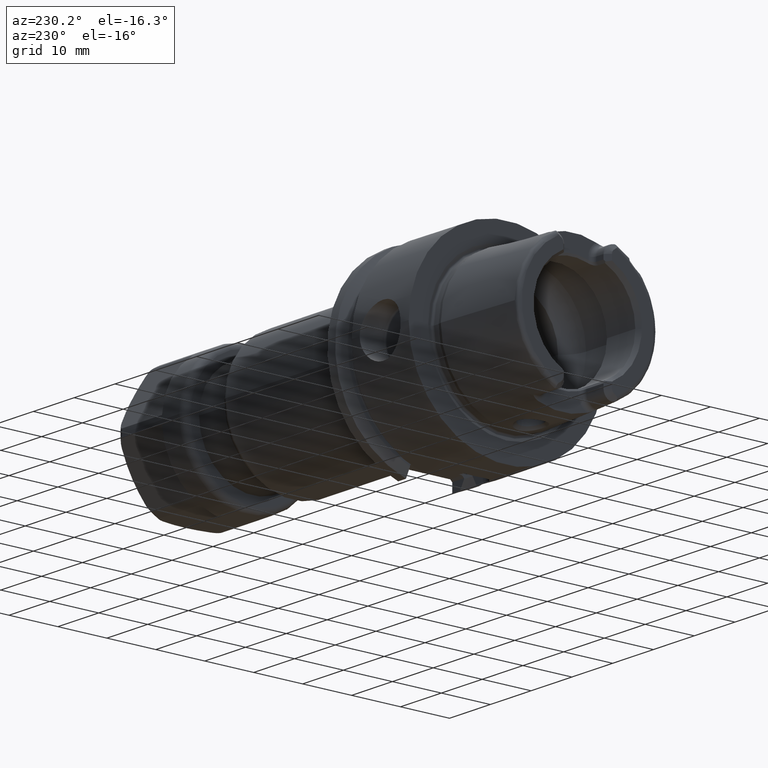
[diagram: clean part render]
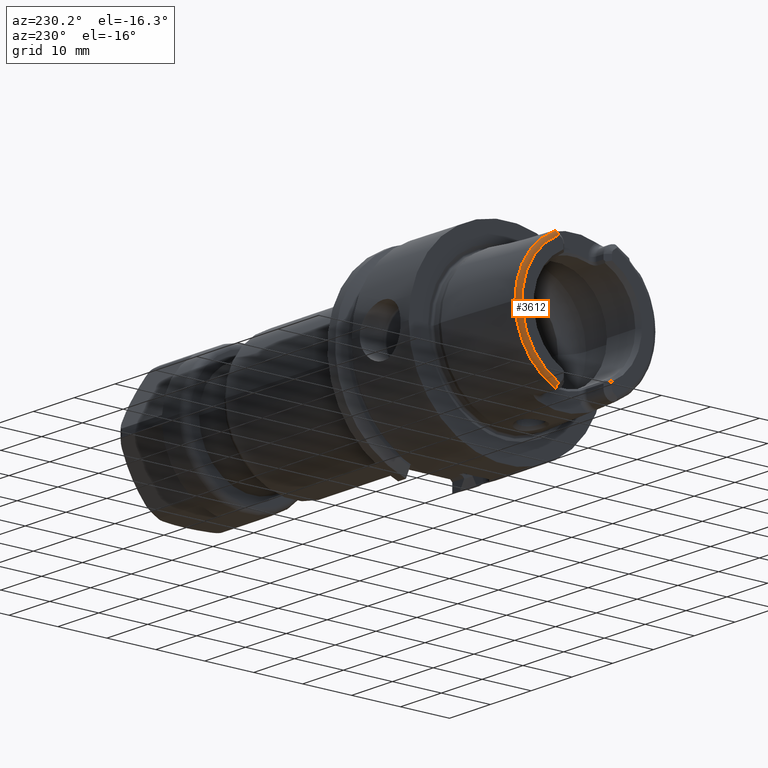
[diagram: same view with one face highlighted and labeled with its STEP entity id]
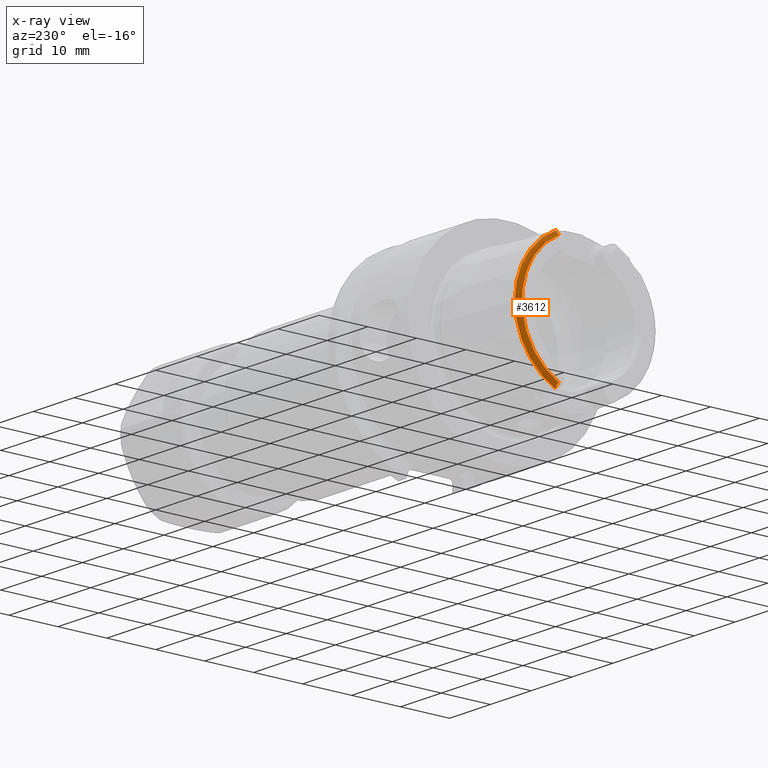
[diagram: x-ray of the same camera — body ghosted, the highlighted face saturated]
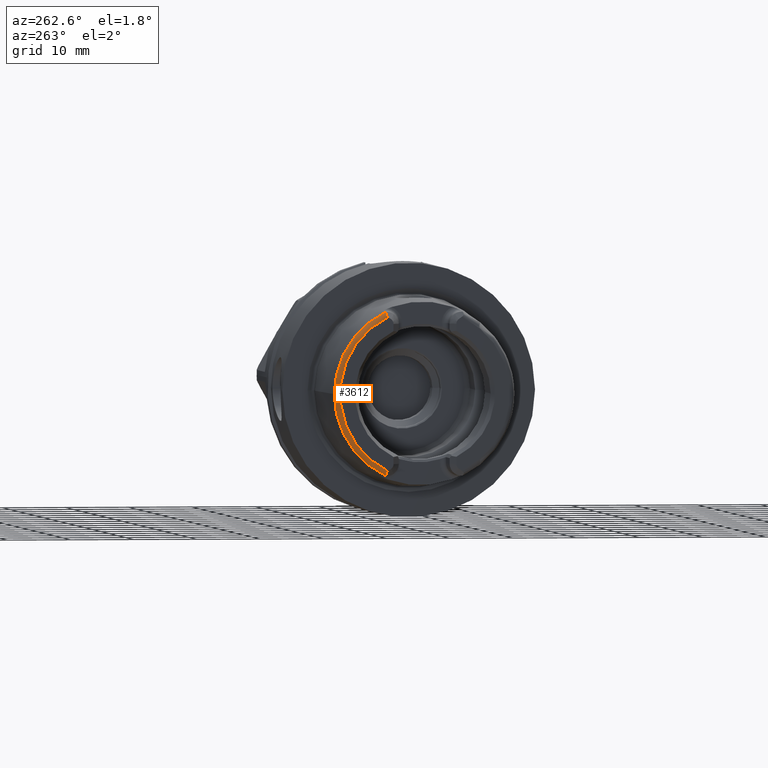
[diagram: same view with one face highlighted and labeled with its STEP entity id]
A machine part, auxiliary view. The second image highlights one B-rep face of the part: STEP entity #3612.
The next image is the same camera in x-ray: the body ghosted, the highlighted face saturated — about 0% of this face is hidden behind the body in this view.
A second angle (auxiliary view) of the same face is appended — the face is thin or edge-on in the first view.
In plain terms, the highlighted toroidal blend (fillet) surface has major radius 13.446 mm and minor (blend) radius 0.8 mm.
Its self-contained STEP definition (entity closure, byte-faithful):
#287=CARTESIAN_POINT('',(-1.933856537110E1,6.001498304814E0,-1.288E1));
#288=CARTESIAN_POINT('',(-1.937741624492E1,6.030738525111E0,-1.285298455424E1));
#289=CARTESIAN_POINT('',(-1.945189770967E1,6.080432291458E0,-1.279679302161E1));
#290=CARTESIAN_POINT('',(-1.955612285287E1,6.130869348046E0,-1.270495335874E1));
#291=CARTESIAN_POINT('',(-1.964568635498E1,6.155054243125E0,-1.261278627615E1));
#292=CARTESIAN_POINT('',(-1.971903364919E1,6.156869370658E0,-1.252486641047E1));
#293=CARTESIAN_POINT('',(-1.977905858015E1,6.139919780195E0,-1.244016828005E1));
#294=CARTESIAN_POINT('',(-1.982542666297E1,6.107236062619E0,-1.236119414965E1));
#295=CARTESIAN_POINT('',(-1.985958687227E1,6.062161703514E0,-1.228849433094E1));
#296=CARTESIAN_POINT('',(-1.988361122E1,6.004727620915E0,-1.221957106927E1));
#297=CARTESIAN_POINT('',(-1.989729045519E1,5.936777890354E0,-1.215595391639E1));
#298=CARTESIAN_POINT('',(-1.99E1,5.887601752234E0,-1.211865522981E1));
#299=CARTESIAN_POINT('',(-1.99E1,5.861946291559E0,-1.210091492411E1));
#301=CARTESIAN_POINT('',(-1.914002979389E1,6.084832258490E0,-1.288E1));
#302=CARTESIAN_POINT('',(-1.915835311417E1,6.082683165194E0,-1.288E1));
#303=CARTESIAN_POINT('',(-1.919411876430E1,6.075541055501E0,-1.288E1));
#304=CARTESIAN_POINT('',(-1.924543426645E1,6.057213687171E0,-1.288E1));
#305=CARTESIAN_POINT('',(-1.929394227686E1,6.032308701799E0,-1.288E1));
#306=CARTESIAN_POINT('',(-1.932397586650E1,6.012290336726E0,-1.288E1));
#307=CARTESIAN_POINT('',(-1.933856537110E1,6.001498304814E0,-1.288E1));
#309=CARTESIAN_POINT('',(-1.914002979389E1,0.E0,0.E0));
#310=DIRECTION('',(-1.E0,0.E0,0.E0));
#311=DIRECTION('',(0.E0,1.E0,0.E0));
#312=AXIS2_PLACEMENT_3D('',#309,#310,#311);
#314=CARTESIAN_POINT('',(-1.914002979389E1,0.E0,0.E0));
#315=DIRECTION('',(1.E0,0.E0,0.E0));
#316=DIRECTION('',(0.E0,1.E0,0.E0));
#317=AXIS2_PLACEMENT_3D('',#314,#315,#316);
#319=CARTESIAN_POINT('',(-1.933856537110E1,6.001498304814E0,1.288E1));
#320=CARTESIAN_POINT('',(-1.930590454157E1,6.025657912976E0,1.288E1));
#321=CARTESIAN_POINT('',(-1.923986516807E1,6.063370586492E0,1.288E1));
#322=CARTESIAN_POINT('',(-1.917341303165E1,6.080916827696E0,1.288E1));
#323=CARTESIAN_POINT('',(-1.914002979389E1,6.084832258490E0,1.288E1));
#325=CARTESIAN_POINT('',(-1.99E1,5.861946291559E0,1.210091492411E1));
#326=CARTESIAN_POINT('',(-1.99E1,5.887620623430E0,1.211866827891E1));
#327=CARTESIAN_POINT('',(-1.989728681245E1,5.936830643930E0,1.215599482338E1));
#328=CARTESIAN_POINT('',(-1.988358517250E1,6.004825612755E0,1.221967049725E1));
#329=CARTESIAN_POINT('',(-1.985952692540E1,6.062274284079E0,1.228864506132E1));
#330=CARTESIAN_POINT('',(-1.982531616070E1,6.107349309172E0,1.236140680537E1));
#331=CARTESIAN_POINT('',(-1.977889126483E1,6.140000651410E0,1.244042762158E1));
#332=CARTESIAN_POINT('',(-1.971882771655E1,6.156892338292E0,1.252513266328E1));
#333=CARTESIAN_POINT('',(-1.964546656454E1,6.155017279759E0,1.261302793589E1));
#334=CARTESIAN_POINT('',(-1.955593123842E1,6.130790777275E0,1.270513199159E1));
#335=CARTESIAN_POINT('',(-1.945178453020E1,6.080360484488E0,1.279688097093E1));
#336=CARTESIAN_POINT('',(-1.937737472390E1,6.030707275268E0,1.285301342640E1));
#337=CARTESIAN_POINT('',(-1.933856537110E1,6.001498304814E0,1.288E1));
#339=CARTESIAN_POINT('',(-1.99E1,0.E0,0.E0));
#340=DIRECTION('',(-1.E0,0.E0,0.E0));
#341=DIRECTION('',(0.E0,4.359625258411E-1,8.999648193470E-1));
#342=AXIS2_PLACEMENT_3D('',#339,#340,#341);
#2787=CARTESIAN_POINT('',(-1.914002979389E1,1.424498450733E1,0.E0));
#2788=VERTEX_POINT('',#2787);
#2803=CARTESIAN_POINT('',(-1.914002979389E1,6.084832258490E0,1.288E1));
#2804=VERTEX_POINT('',#2803);
#2807=CARTESIAN_POINT('',(-1.914002979389E1,6.084832258490E0,-1.288E1));
#2808=VERTEX_POINT('',#2807);
#2892=CARTESIAN_POINT('',(-1.99E1,5.861946291559E0,1.210091492411E1));
#2893=VERTEX_POINT('',#2892);
#2894=VERTEX_POINT('',#337);
#2924=CARTESIAN_POINT('',(-1.99E1,5.861946291559E0,-1.210091492411E1));
#2925=VERTEX_POINT('',#2924);
#2926=VERTEX_POINT('',#287);
#3594=CARTESIAN_POINT('',(-1.91E1,0.E0,0.E0));
#3595=DIRECTION('',(1.E0,0.E0,0.E0));
#3596=DIRECTION('',(0.E0,-1.E0,0.E0));
#3597=AXIS2_PLACEMENT_3D('',#3594,#3595,#3596);
#3598=TOROIDAL_SURFACE('',#3597,1.344598662523E1,8.E-1);
#3600=ORIENTED_EDGE('',*,*,#3599,.F.);
#3602=ORIENTED_EDGE('',*,*,#3601,.F.);
#3604=ORIENTED_EDGE('',*,*,#3603,.F.);
#3605=ORIENTED_EDGE('',*,*,#3315,.T.);
#3607=ORIENTED_EDGE('',*,*,#3606,.F.);
#3608=ORIENTED_EDGE('',*,*,#3585,.F.);
#3609=ORIENTED_EDGE('',*,*,#3379,.T.);
#3610=EDGE_LOOP('',(#3600,#3602,#3604,#3605,#3607,#3608,#3609));
#3611=FACE_OUTER_BOUND('',#3610,.F.);
#3612=ADVANCED_FACE('',(#3611),#3598,.T.);
#300=B_SPLINE_CURVE_WITH_KNOTS('',3,(#287,#288,#289,#290,#291,#292,#293,#294,
#295,#296,#297,#298,#299),.UNSPECIFIED.,.F.,.F.,(4,1,1,1,1,1,1,1,1,1,4),(0.E0,
1.E-1,2.E-1,3.E-1,4.E-1,5.E-1,6.E-1,7.E-1,8.E-1,9.E-1,1.E0),.UNSPECIFIED.);
#308=B_SPLINE_CURVE_WITH_KNOTS('',3,(#301,#302,#303,#304,#305,#306,#307),
.UNSPECIFIED.,.F.,.F.,(4,1,1,1,4),(0.E0,2.5E-1,5.E-1,7.5E-1,1.E0),
.UNSPECIFIED.);
#313=CIRCLE('',#312,1.424498450733E1);
#318=CIRCLE('',#317,1.424498450733E1);
#324=B_SPLINE_CURVE_WITH_KNOTS('',3,(#319,#320,#321,#322,#323),.UNSPECIFIED.,
.F.,.F.,(4,1,4),(0.E0,5.E-1,1.E0),.UNSPECIFIED.);
#338=B_SPLINE_CURVE_WITH_KNOTS('',3,(#325,#326,#327,#328,#329,#330,#331,#332,
#333,#334,#335,#336,#337),.UNSPECIFIED.,.F.,.F.,(4,1,1,1,1,1,1,1,1,1,4),(0.E0,
1.E-1,2.E-1,3.E-1,4.E-1,5.E-1,6.E-1,7.E-1,8.E-1,9.E-1,1.E0),.UNSPECIFIED.);
#343=CIRCLE('',#342,1.344598662523E1);
#3315=EDGE_CURVE('',#2788,#2804,#318,.T.);
#3379=EDGE_CURVE('',#2893,#2925,#343,.T.);
#3585=EDGE_CURVE('',#2893,#2894,#338,.T.);
#3599=EDGE_CURVE('',#2926,#2925,#300,.T.);
#3601=EDGE_CURVE('',#2808,#2926,#308,.T.);
#3603=EDGE_CURVE('',#2788,#2808,#313,.T.);
#3606=EDGE_CURVE('',#2894,#2804,#324,.T.);